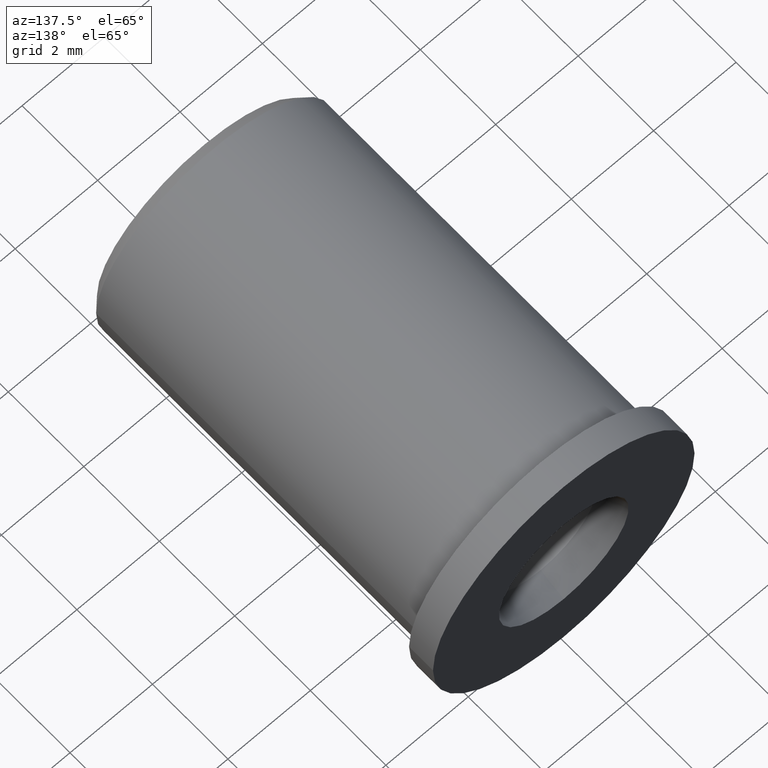
[diagram: clean part render]
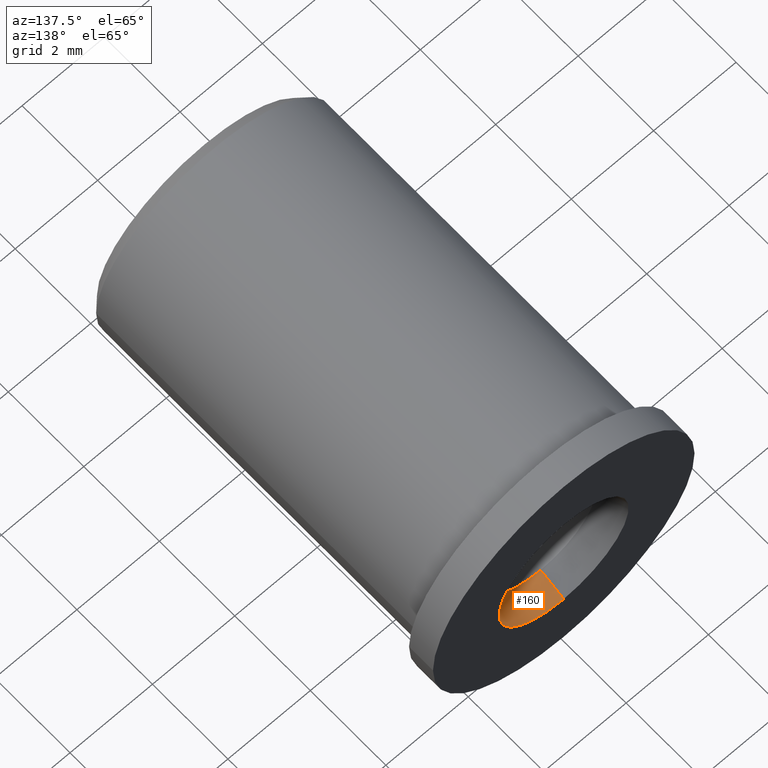
[diagram: same view with one face highlighted and labeled with its STEP entity id]
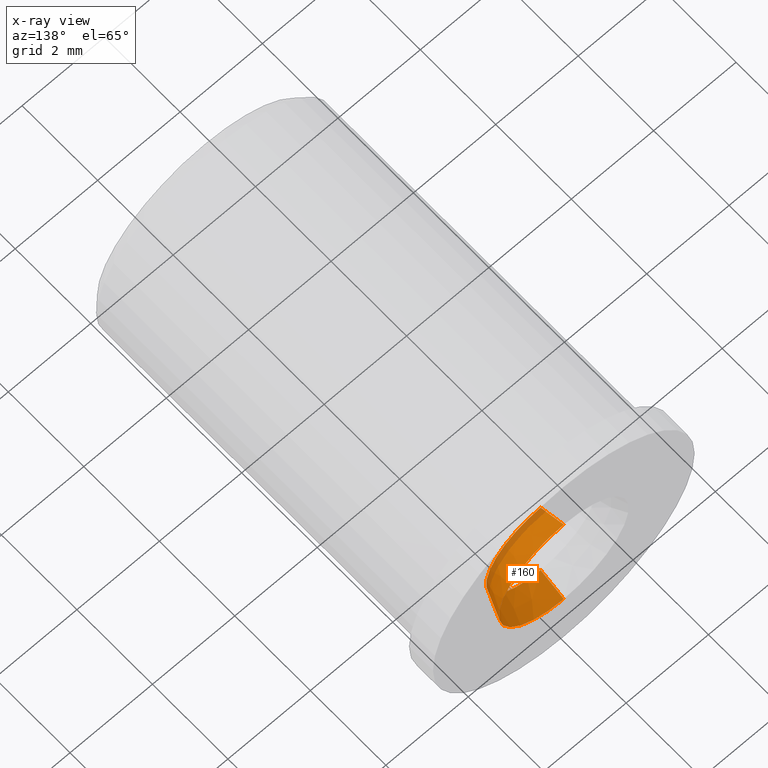
[diagram: x-ray of the same camera — body ghosted, the highlighted face saturated]
A machine part, auxiliary view. The second image highlights one B-rep face of the part: STEP entity #160.
The next image is the same camera in x-ray: the body ghosted, the highlighted face saturated — about 12% of this face is hidden behind the body in this view.
In plain terms, the highlighted conical surface has half-angle 22.5 deg.
Its self-contained STEP definition (entity closure, byte-faithful):
#14 = VERTEX_POINT ( 'NONE', #142 ) ;
#32 = EDGE_CURVE ( 'NONE', #14, #33, #194, .T. ) ;
#33 = VERTEX_POINT ( 'NONE', #190 ) ;
#36 = VERTEX_POINT ( 'NONE', #251 ) ;
#38 = EDGE_CURVE ( 'NONE', #58, #36, #250, .T. ) ;
#58 = VERTEX_POINT ( 'NONE', #257 ) ;
#72 = EDGE_CURVE ( 'NONE', #36, #33, #295, .T. ) ;
#142 = CARTESIAN_POINT ( 'NONE',  ( -8.637962917637001400E-016, 0.2258578643762695300, -0.05199999999999999100 ) ) ;
#160 = ADVANCED_FACE ( 'NONE', ( #415 ), #410, .F. ) ;
#161 = EDGE_LOOP ( 'NONE', ( #162, #163, #165, #166 ) ) ;
#162 = ORIENTED_EDGE ( 'NONE', *, *, #32, .F. ) ;
#163 = ORIENTED_EDGE ( 'NONE', *, *, #164, .F. ) ;
#164 = EDGE_CURVE ( 'NONE', #58, #14, #458, .T. ) ;
#165 = ORIENTED_EDGE ( 'NONE', *, *, #38, .T. ) ;
#166 = ORIENTED_EDGE ( 'NONE', *, *, #72, .T. ) ;
#190 = CARTESIAN_POINT ( 'NONE',  ( -8.631839885867890400E-016, 0.2500000000000006700, -0.06199999999999997900 ) ) ;
#191 = DIRECTION ( 'NONE',  ( 4.686365627768408700E-017, 0.9238795325112879600, -0.3826834323650865100 ) ) ;
#192 = VECTOR ( 'NONE', #191, 39.37007874015748900 ) ;
#193 = CARTESIAN_POINT ( 'NONE',  ( -8.631839885867890400E-016, 0.2500000000000006700, -0.06199999999999997900 ) ) ;
#194 = LINE ( 'NONE', #193, #192 ) ;
#247 = DIRECTION ( 'NONE',  ( 0.0000000000000000000, 0.9238795325112879600, 0.3826834323650865100 ) ) ;
#248 = VECTOR ( 'NONE', #247, 39.37007874015748900 ) ;
#249 = CARTESIAN_POINT ( 'NONE',  ( -8.707765479804877300E-016, 0.2500000000000006700, 0.06199999999999997900 ) ) ;
#250 = LINE ( 'NONE', #249, #248 ) ;
#251 = CARTESIAN_POINT ( 'NONE',  ( -8.707765479804877300E-016, 0.2500000000000006700, 0.06199999999999997900 ) ) ;
#257 = CARTESIAN_POINT ( 'NONE',  ( -8.707765479804877300E-016, 0.2258578643762695300, 0.05199999999999999100 ) ) ;
#291 = DIRECTION ( 'NONE',  ( 0.0000000000000000000, 0.0000000000000000000, 1.000000000000000000 ) ) ;
#292 = DIRECTION ( 'NONE',  ( 0.0000000000000000000, 1.000000000000000000, 0.0000000000000000000 ) ) ;
#293 = CARTESIAN_POINT ( 'NONE',  ( -8.707765479804877300E-016, 0.2500000000000006700, 0.0000000000000000000 ) ) ;
#294 = AXIS2_PLACEMENT_3D ( 'NONE', #293, #292, #291 ) ;
#295 = CIRCLE ( 'NONE', #294, 0.06199999999999997900 ) ;
#410 = CONICAL_SURFACE ( 'NONE', #462, 0.06199999999999997900, 0.3926990816987207000 ) ;
#415 = FACE_OUTER_BOUND ( 'NONE', #161, .T. ) ;
#454 = DIRECTION ( 'NONE',  ( 0.0000000000000000000, 0.0000000000000000000, 1.000000000000000000 ) ) ;
#455 = DIRECTION ( 'NONE',  ( 0.0000000000000000000, 1.000000000000000000, 0.0000000000000000000 ) ) ;
#456 = CARTESIAN_POINT ( 'NONE',  ( -8.707765479804877300E-016, 0.2258578643762695300, 0.0000000000000000000 ) ) ;
#457 = AXIS2_PLACEMENT_3D ( 'NONE', #456, #455, #454 ) ;
#458 = CIRCLE ( 'NONE', #457, 0.05199999999999999100 ) ;
#459 = DIRECTION ( 'NONE',  ( 0.0000000000000000000, 0.0000000000000000000, 1.000000000000000000 ) ) ;
#460 = DIRECTION ( 'NONE',  ( 0.0000000000000000000, 1.000000000000000000, 0.0000000000000000000 ) ) ;
#461 = CARTESIAN_POINT ( 'NONE',  ( -8.707765479804877300E-016, 0.2500000000000006700, 0.0000000000000000000 ) ) ;
#462 = AXIS2_PLACEMENT_3D ( 'NONE', #461, #460, #459 ) ;